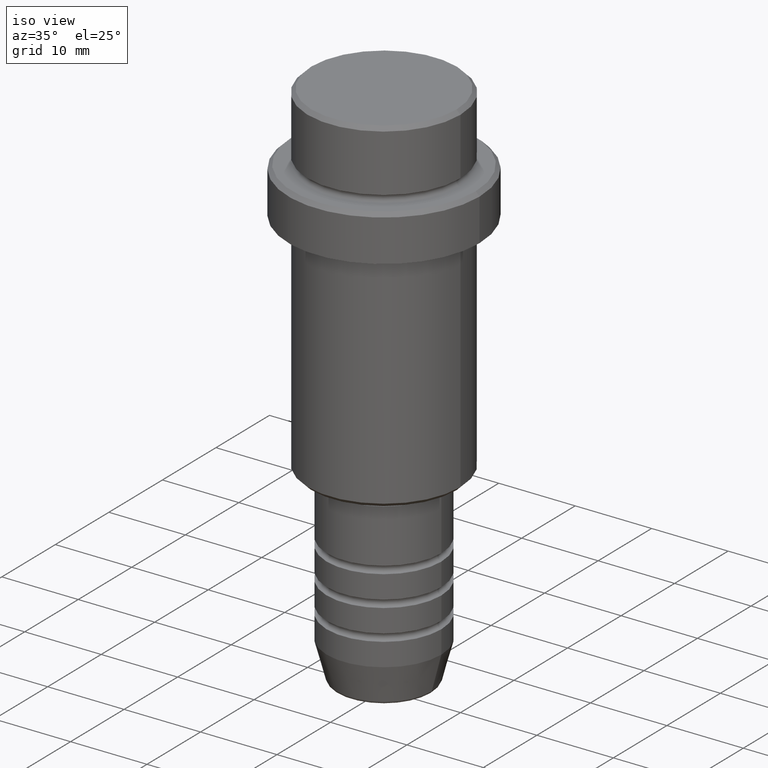
[diagram: clean part render]
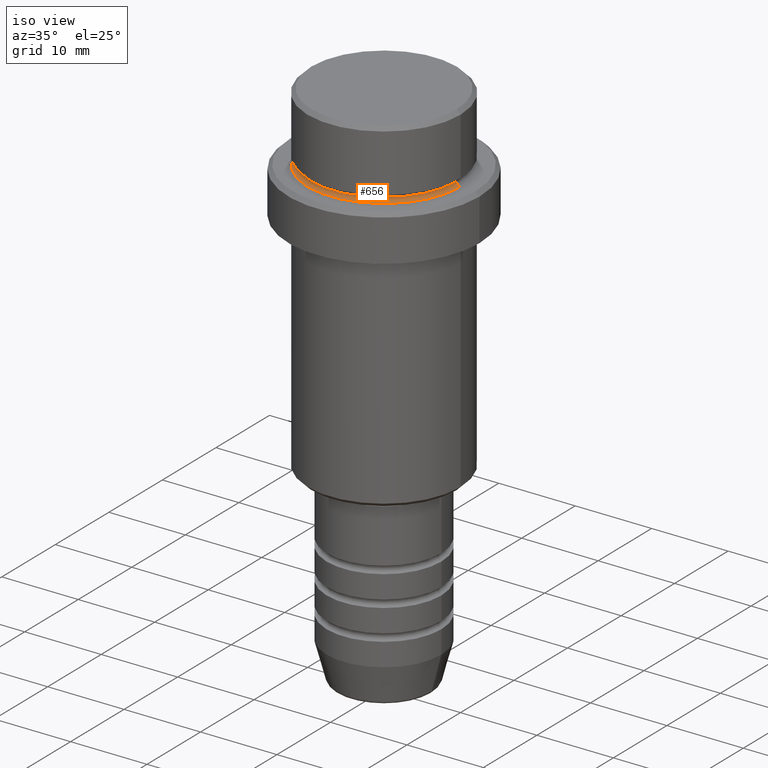
[diagram: same view with one face highlighted and labeled with its STEP entity id]
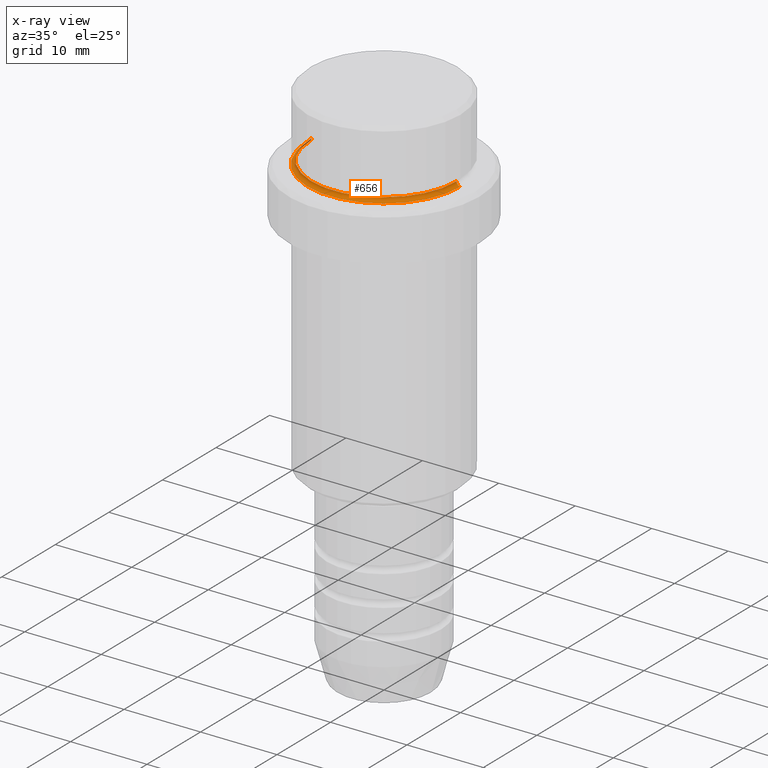
[diagram: x-ray of the same camera — body ghosted, the highlighted face saturated]
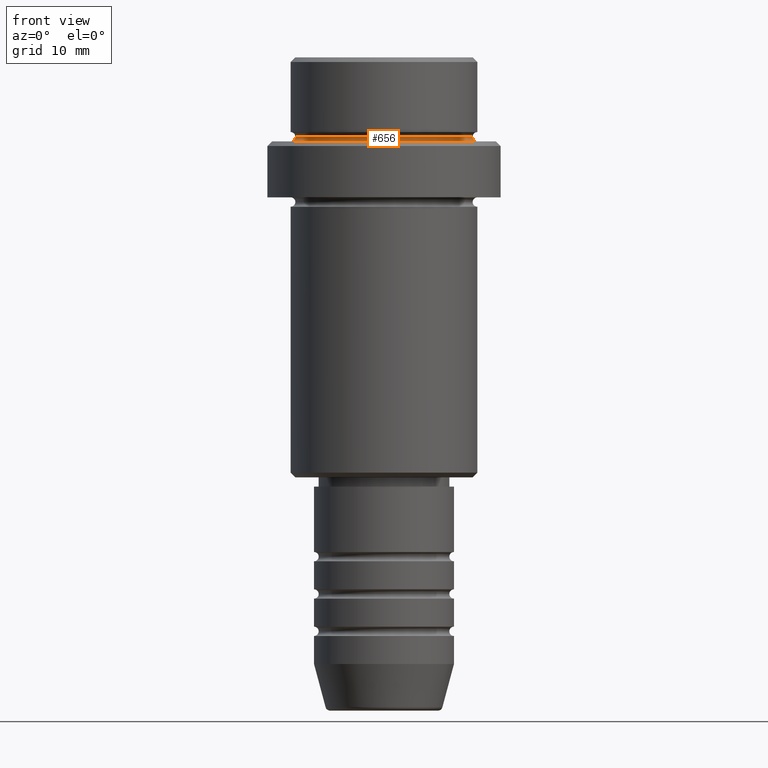
[diagram: same view with one face highlighted and labeled with its STEP entity id]
A machine part, iso view. The second image highlights one B-rep face of the part: STEP entity #656.
The next image is the same camera in x-ray: the body ghosted, the highlighted face saturated — about 2% of this face is hidden behind the body in this view.
A second angle (front view) of the same face is appended — the face is thin or edge-on in the first view.
In plain terms, the highlighted toroidal blend (fillet) surface has major radius 10 mm and minor (blend) radius 0.5 mm.
Its self-contained STEP definition (entity closure, byte-faithful):
#36 = DIRECTION ( 'NONE',  ( 1.000000000000000000, 0.000000000000000000, 0.000000000000000000 ) ) ;
#40 = CIRCLE ( 'NONE', #1388, 0.5000000000000004441 ) ;
#78 = DIRECTION ( 'NONE',  ( 1.224646799147353207E-16, 1.000000000000000000, 0.000000000000000000 ) ) ;
#81 = AXIS2_PLACEMENT_3D ( 'NONE', #910, #876, #884 ) ;
#108 = DIRECTION ( 'NONE',  ( 0.000000000000000000, 0.000000000000000000, -1.000000000000000000 ) ) ;
#136 = DIRECTION ( 'NONE',  ( -0.000000000000000000, -0.000000000000000000, 1.000000000000000000 ) ) ;
#185 = DIRECTION ( 'NONE',  ( -1.000000000000000000, 1.224646799147353454E-16, 0.000000000000000000 ) ) ;
#202 = DIRECTION ( 'NONE',  ( 1.000000000000000000, 0.000000000000000000, 0.000000000000000000 ) ) ;
#257 = ORIENTED_EDGE ( 'NONE', *, *, #1046, .F. ) ;
#280 = CARTESIAN_POINT ( 'NONE',  ( 0.000000000000000000, 0.000000000000000000, -8.500000000000000000 ) ) ;
#321 = CARTESIAN_POINT ( 'NONE',  ( -9.999999999999994671, 1.224646799147352665E-15, -8.500000000000000000 ) ) ;
#328 = EDGE_CURVE ( 'NONE', #1393, #1379, #547, .T. ) ;
#336 = TOROIDAL_SURFACE ( 'NONE', #965, 9.999999999999994671, 0.5000000000000000000 ) ;
#427 = EDGE_CURVE ( 'NONE', #1379, #565, #1251, .T. ) ;
#473 = CARTESIAN_POINT ( 'NONE',  ( 9.999999999999994671, 0.000000000000000000, -9.000000000000001776 ) ) ;
#485 = AXIS2_PLACEMENT_3D ( 'NONE', #841, #953, #202 ) ;
#513 = EDGE_CURVE ( 'NONE', #779, #565, #40, .T. ) ;
#547 = CIRCLE ( 'NONE', #81, 0.5000000000000004441 ) ;
#565 = VERTEX_POINT ( 'NONE', #1261 ) ;
#656 = ADVANCED_FACE ( 'NONE', ( #1242 ), #336, .F. ) ;
#657 = CARTESIAN_POINT ( 'NONE',  ( 0.000000000000000000, 0.000000000000000000, -9.000000000000001776 ) ) ;
#690 = CARTESIAN_POINT ( 'NONE',  ( 9.499999999999994671, 0.000000000000000000, -8.500000000000000000 ) ) ;
#706 = ORIENTED_EDGE ( 'NONE', *, *, #328, .F. ) ;
#779 = VERTEX_POINT ( 'NONE', #846 ) ;
#841 = CARTESIAN_POINT ( 'NONE',  ( 0.000000000000000000, 0.000000000000000000, -8.500000000000000000 ) ) ;
#846 = CARTESIAN_POINT ( 'NONE',  ( -9.499999999999994671, 1.194030629168668681E-15, -8.500000000000000000 ) ) ;
#876 = DIRECTION ( 'NONE',  ( 0.000000000000000000, -1.000000000000000000, 0.000000000000000000 ) ) ;
#884 = DIRECTION ( 'NONE',  ( 0.000000000000000000, 0.000000000000000000, -1.000000000000000000 ) ) ;
#910 = CARTESIAN_POINT ( 'NONE',  ( 9.999999999999994671, 0.000000000000000000, -8.500000000000000000 ) ) ;
#952 = ORIENTED_EDGE ( 'NONE', *, *, #427, .F. ) ;
#953 = DIRECTION ( 'NONE',  ( -0.000000000000000000, -0.000000000000000000, 1.000000000000000000 ) ) ;
#965 = AXIS2_PLACEMENT_3D ( 'NONE', #280, #136, #36 ) ;
#971 = ORIENTED_EDGE ( 'NONE', *, *, #513, .T. ) ;
#1046 = EDGE_CURVE ( 'NONE', #779, #1393, #1104, .T. ) ;
#1097 = DIRECTION ( 'NONE',  ( 1.000000000000000000, 0.000000000000000000, 0.000000000000000000 ) ) ;
#1104 = CIRCLE ( 'NONE', #485, 9.499999999999994671 ) ;
#1135 = EDGE_LOOP ( 'NONE', ( #257, #971, #952, #706 ) ) ;
#1157 = AXIS2_PLACEMENT_3D ( 'NONE', #657, #108, #1097 ) ;
#1242 = FACE_OUTER_BOUND ( 'NONE', #1135, .T. ) ;
#1251 = CIRCLE ( 'NONE', #1157, 9.999999999999994671 ) ;
#1261 = CARTESIAN_POINT ( 'NONE',  ( -9.999999999999994671, 1.224646799147352665E-15, -9.000000000000001776 ) ) ;
#1379 = VERTEX_POINT ( 'NONE', #473 ) ;
#1388 = AXIS2_PLACEMENT_3D ( 'NONE', #321, #78, #185 ) ;
#1393 = VERTEX_POINT ( 'NONE', #690 ) ;